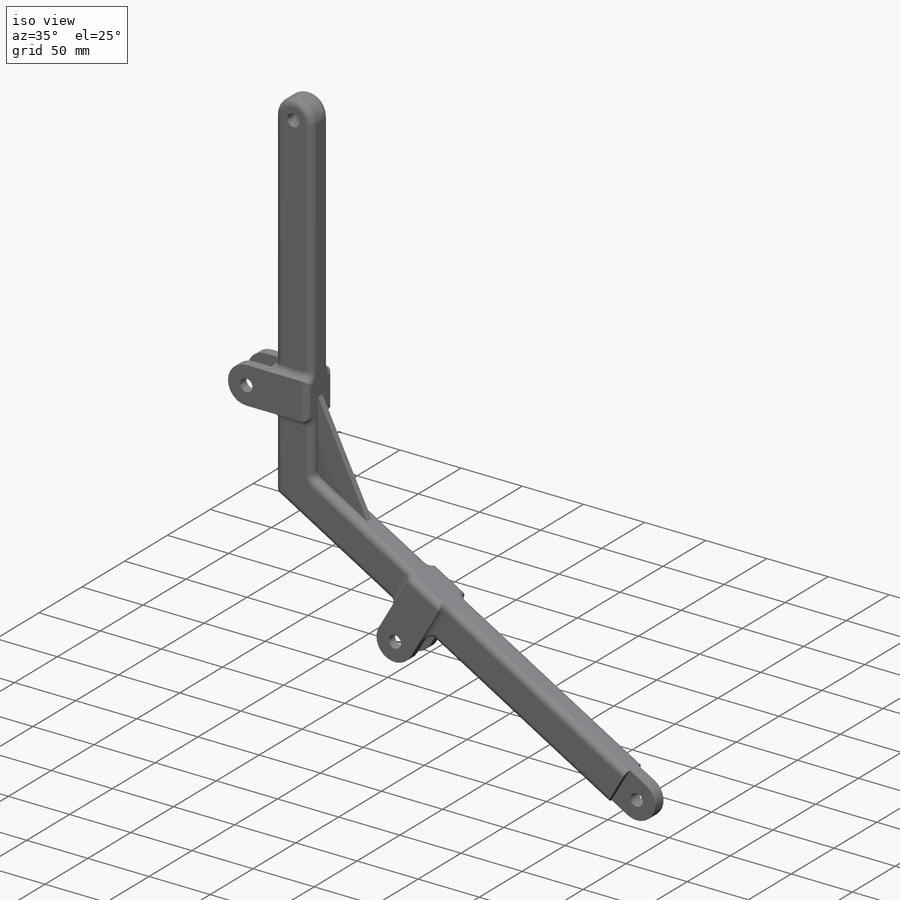
[diagram: iso view]
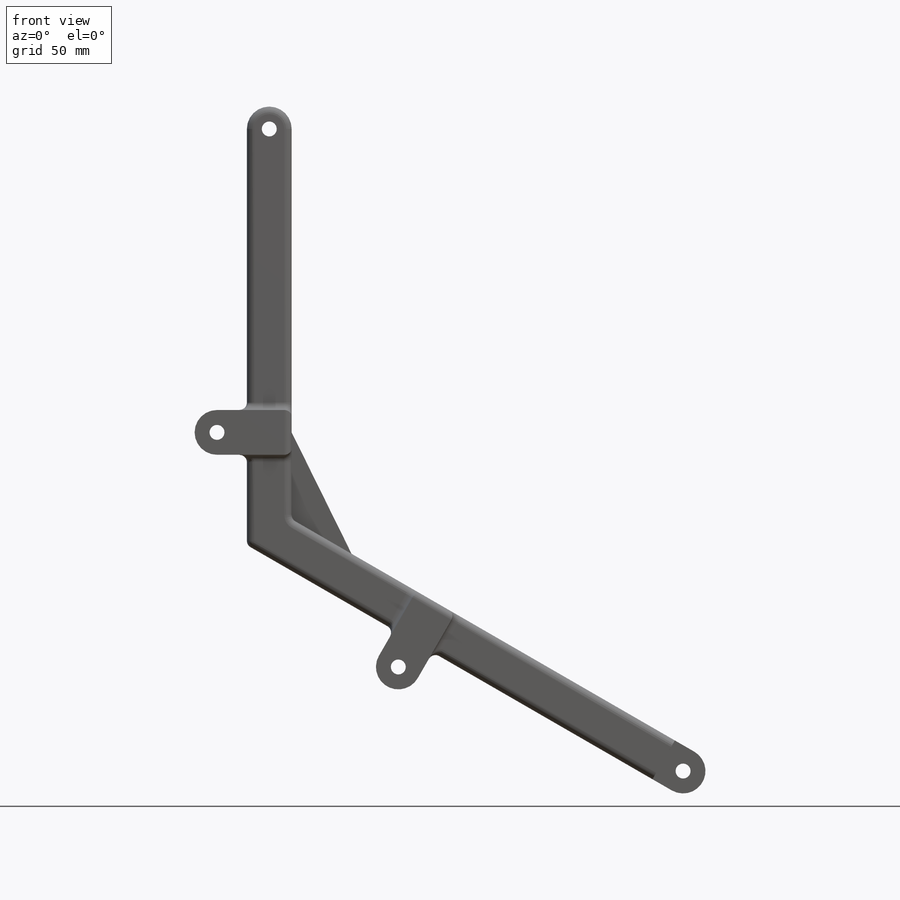
[diagram: front view]
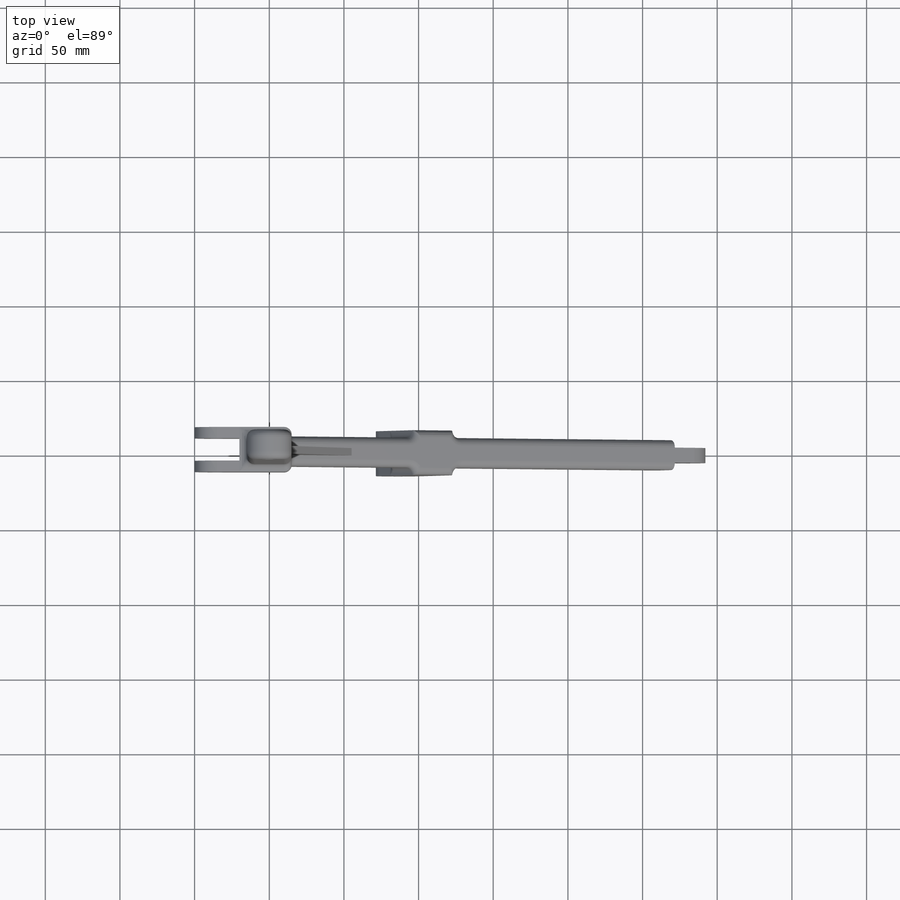
[diagram: top view]
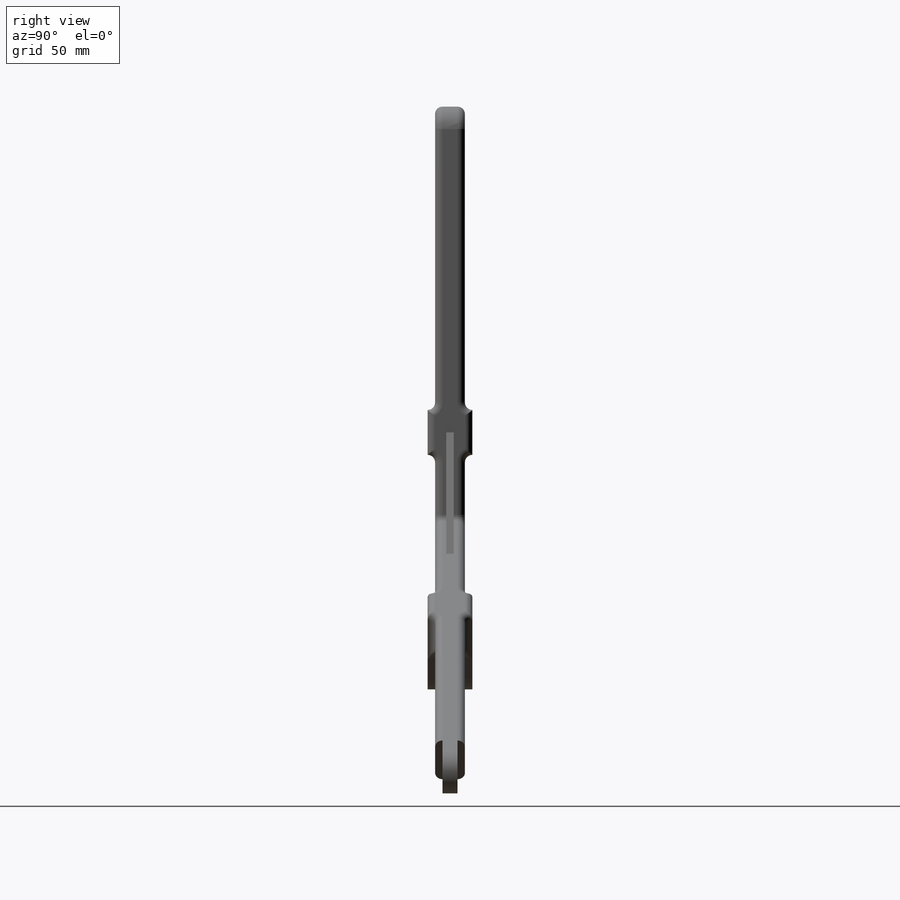
[diagram: right view]
SOLIDWORKS PART (.sldprt)
format: sldprt  version: not decoded by parser v0  size: 469,504 bytes
history: native  units: mm
features: sketch x6, extrude x4, fillet x2, material x1, cut_extrude x1 (+11 scaffold rows collapsed)
feature tree (25):
  scaffold x11  (default folders/planes/origin — collapsed)
  material  "6063-T5"
  sketch  "Sketch4"  dims[c1.D1=30.0mm c1.D2=10.0mm c1.D7=30.0mm c1.D9=10.0mm c1.D10=30.0mm c1.D13=10.0mm c1.D14=~14.939391mm c1.D15=30.0mm c1.D17=10.0mm c1.D3=270.0mm c1.D4=305.0mm c1.D5=80.0mm c2.D5=120.0deg c2.D6=30.0mm c2.D7=~27.205716mm c2.D8=15.0mm c2.D10=~40.809302mm c2.D11=20.0mm c2.D12=268.0mm c2.D14=185.0mm c2.D16=20.0mm c3.D12=203.2mm c3.D18=30.0mm]
  extrude  "Boss-Extrude1"  Depth=20mm
  extrude  "Boss-Extrude2"  [1 undecoded]
  sketch  "Sketch4<3>"  dims[D1=10.0mm]
  extrude  "Boss-Extrude4"  [1 undecoded]
  sketch  "Sketch4<5>"  dims[D1=30.0mm]
  extrude  "Boss-Extrude5"  [1 undecoded]
  sketch  "Sketch4<8>"  dims[D1=30.0mm]
  fillet  "Fillet1"  Radius=5mm
  fillet  "Fillet2"  Radius=5mm
  sketch  "Sketch6"  dims[D1=30.0mm D2=~21.556871mm D3=~8.666375mm]
  cut_extrude  "Cut-Extrude2"  Depth=15mm
  sketch  "Sketch9"  dims[c1.D1=50.0mm c1.D2=~90.674049mm c2.D1=5.0mm]
decode coverage: 10 of 13 modeling features carry decoded parameters
note: ~ marks probable driven/reference dimensions
note: 3 parameter values undecoded
summary: no parameter record found for 3 features
note: suppression state not decoded; provenance and decode notes live in map.json
